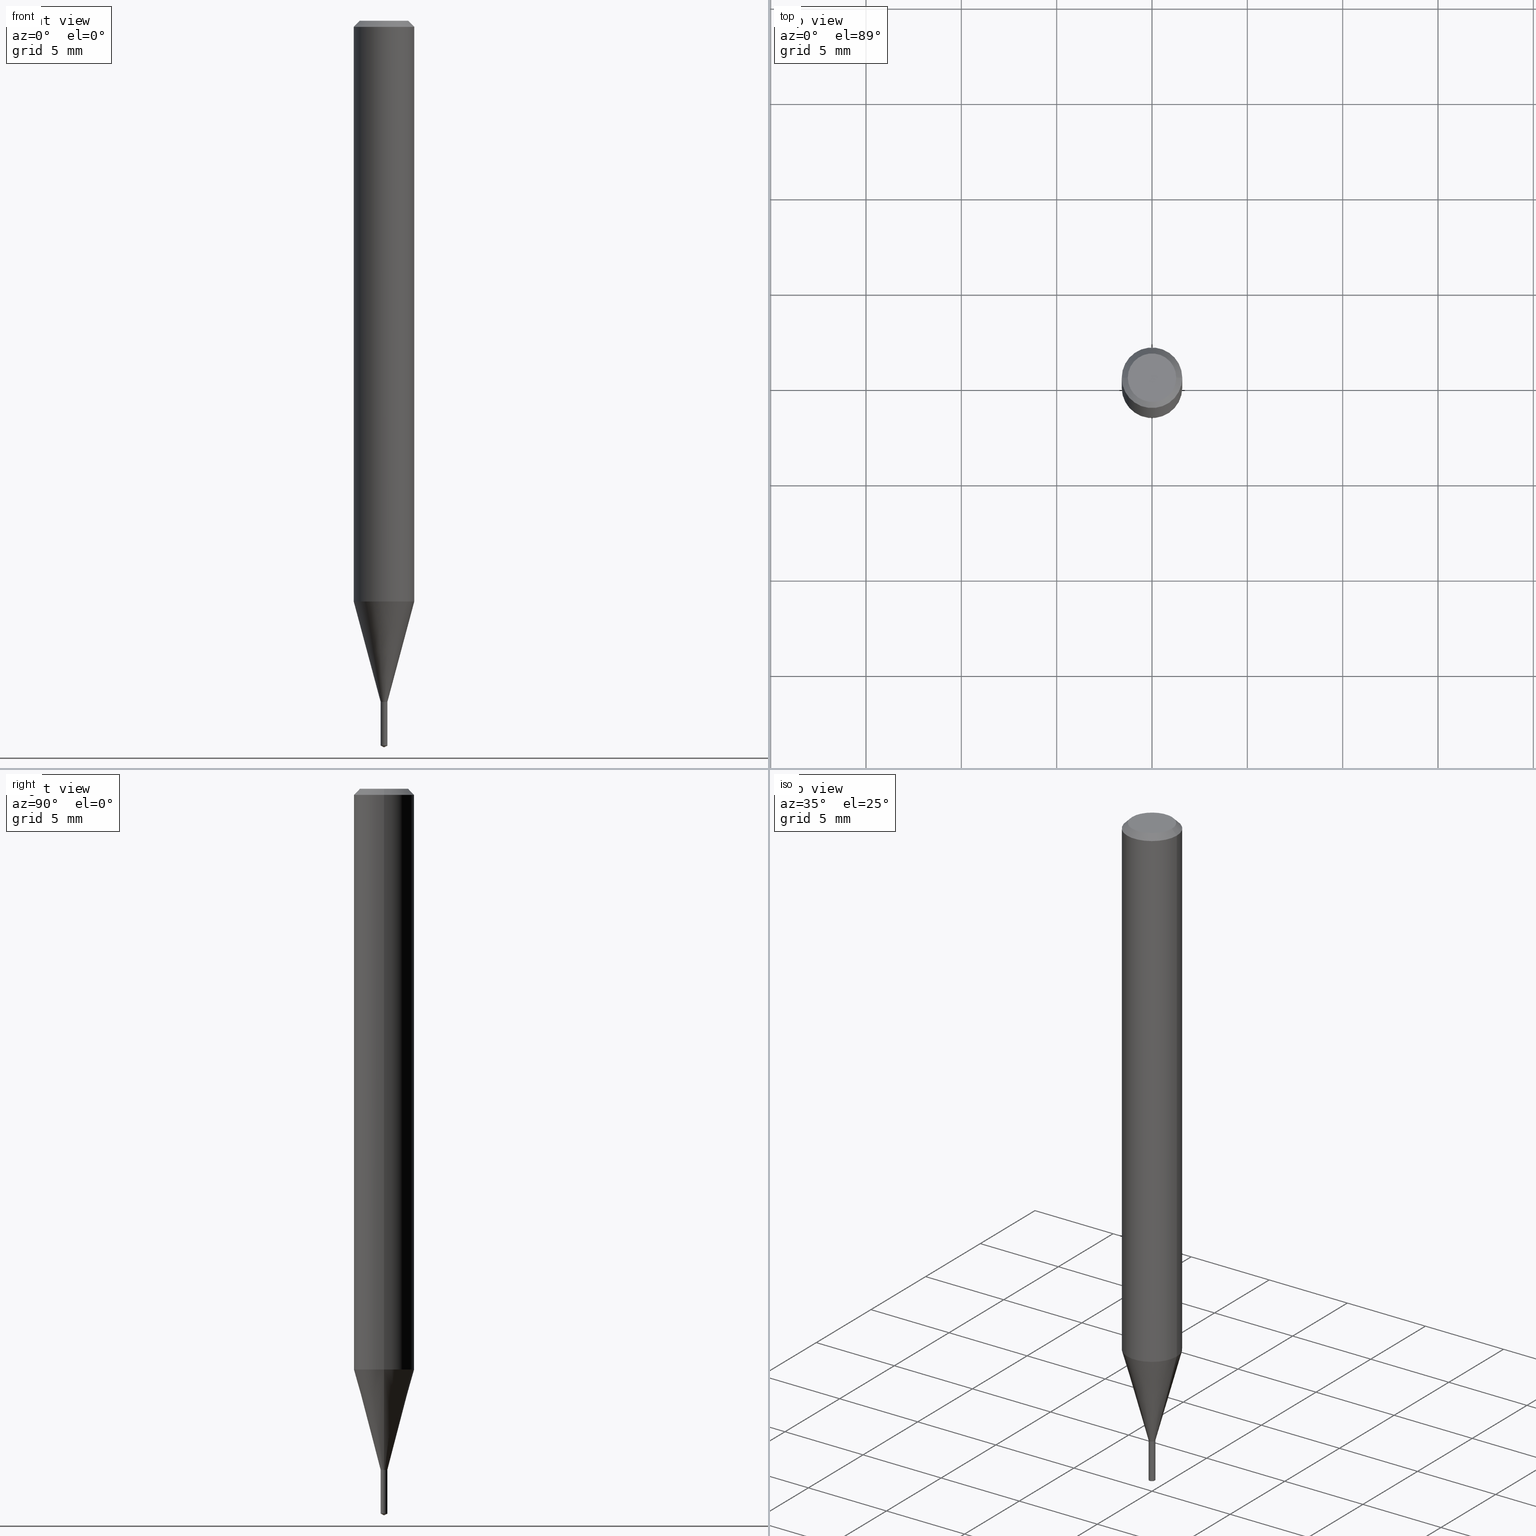
[diagram: canonical four-view strip — front | top / right | iso, engineering-drawing reading convention]
A machine part, canonical four-view strip (front | top / right | iso — engineering-drawing reading convention). The complete STEP part file that produces these views, byte-faithful:
ISO-10303-21;
HEADER;
FILE_DESCRIPTION (( 'STEP AP203' ),
    '1' );
FILE_NAME ('07118.STEP',
    '2024-04-23T19:33:33',
    ( '' ),
    ( '' ),
    'SwSTEP 2.0',
    'SolidWorks 2023',
    '' );
FILE_SCHEMA (( 'CONFIG_CONTROL_DESIGN' ));
ENDSEC;

DATA;
#1 = EDGE_LOOP ( 'NONE', ( #106, #3, #382, #408 ) ) ;
#2 = CYLINDRICAL_SURFACE ( 'NONE', #39, 0.06250000000000006939 ) ;
#3 = ORIENTED_EDGE ( 'NONE', *, *, #194, .T. ) ;
#4 = DIRECTION ( 'NONE',  ( -6.982962677686265922E-15, -1.000000000000000000, 0.000000000000000000 ) ) ;
#5 = EDGE_LOOP ( 'NONE', ( #230, #459, #77, #347 ) ) ;
#6 = CC_DESIGN_DATE_AND_TIME_ASSIGNMENT ( #275, #421, ( #169 ) ) ;
#7 = CARTESIAN_POINT ( 'NONE',  ( 0.06250000000000013878, -4.623063370858769770E-15, -1.199097975099176372 ) ) ;
#8 = VERTEX_POINT ( 'NONE', #294 ) ;
#9 = EDGE_CURVE ( 'NONE', #33, #416, #337, .T. ) ;
#10 = AXIS2_PLACEMENT_3D ( 'NONE', #247, #170, #292 ) ;
#11 = DIRECTION ( 'NONE',  ( -2.445468806185136597E-29, 3.491481338843145583E-15, 1.000000000000000000 ) ) ;
#12 = EDGE_CURVE ( 'NONE', #205, #72, #175, .T. ) ;
#13 = DIRECTION ( 'NONE',  ( -2.441004968667903807E-29, 3.497873808233676026E-15, 1.000000000000000000 ) ) ;
#14 = ADVANCED_FACE ( 'NONE', ( #217 ), #371, .F. ) ;
#15 = CARTESIAN_POINT ( 'NONE',  ( 0.006899999999999999883, -4.959300093692804553E-15, -1.406600000000000295 ) ) ;
#16 = DIRECTION ( 'NONE',  ( -2.445468806185136597E-29, 3.491481338843145583E-15, 1.000000000000000000 ) ) ;
#17 = DATE_AND_TIME ( #174, #150 ) ;
#18 = CC_DESIGN_PERSON_AND_ORGANIZATION_ASSIGNMENT ( #442, #397, ( #372 ) ) ;
#19 = FACE_OUTER_BOUND ( 'NONE', #251, .T. ) ;
#20 = CLOSED_SHELL ( 'NONE', ( #417, #88, #348, #65, #289 ) ) ;
#21 = CARTESIAN_POINT ( 'NONE',  ( -0.06250000000000000000, 3.927916506198520587E-16, -0.01250000000000008570 ) ) ;
#22 = DIRECTION ( 'NONE',  ( 1.000000000000000000, -6.982962677686270655E-15, 0.000000000000000000 ) ) ;
#23 = EDGE_CURVE ( 'NONE', #465, #205, #322, .T. ) ;
#24 = CYLINDRICAL_SURFACE ( 'NONE', #450, 0.006899999999999999883 ) ;
#25 = LINE ( 'NONE', #263, #259 ) ;
#26 = CARTESIAN_POINT ( 'NONE',  ( -9.243535897573469327E-28, 1.324729069394167476E-13, 37.87007874015748143 ) ) ;
#27 = DIRECTION ( 'NONE',  ( 1.000000000000000000, -6.982962677686303787E-15, 0.000000000000000000 ) ) ;
#28 = CARTESIAN_POINT ( 'NONE',  ( 0.006899999999999999883, -4.498075408831625167E-15, -1.274500000000000188 ) ) ;
#29 = AXIS2_PLACEMENT_3D ( 'NONE', #26, #267, #379 ) ;
#30 = EDGE_LOOP ( 'NONE', ( #126, #311, #265, #196 ) ) ;
#31 = CARTESIAN_POINT ( 'NONE',  ( -0.006399999999999998572, -4.406163971936365457E-15, -1.275000000000000133 ) ) ;
#32 = DIRECTION ( 'NONE',  ( -2.445468806185136597E-29, 3.491481338843145583E-15, 1.000000000000000000 ) ) ;
#33 = VERTEX_POINT ( 'NONE', #15 ) ;
#34 = CIRCLE ( 'NONE', #444, 0.006399999999999998572 ) ;
#35 = ORIENTED_EDGE ( 'NONE', *, *, #330, .F. ) ;
#36 = DIRECTION ( 'NONE',  ( 1.000000000000000000, -6.982962677686266711E-15, 4.876176775795935793E-29 ) ) ;
#37 = ORIENTED_EDGE ( 'NONE', *, *, #374, .F. ) ;
#38 = AXIS2_PLACEMENT_3D ( 'NONE', #142, #343, #441 ) ;
#39 = AXIS2_PLACEMENT_3D ( 'NONE', #153, #233, #36 ) ;
#40 = APPROVAL_STATUS ( 'not_yet_approved' ) ;
#41 = ORIENTED_EDGE ( 'NONE', *, *, #225, .F. ) ;
#42 = CARTESIAN_POINT ( 'NONE',  ( 3.056836007731441853E-31, -4.364351673553962300E-17, -0.01250000000000008570 ) ) ;
#43 = ORIENTED_EDGE ( 'NONE', *, *, #216, .F. ) ;
#44 = DIRECTION ( 'NONE',  ( -2.445468806185136597E-29, 3.491481338843145583E-15, 1.000000000000000000 ) ) ;
#45 = VERTEX_POINT ( 'NONE', #368 ) ;
#46 = AXIS2_PLACEMENT_3D ( 'NONE', #49, #400, #124 ) ;
#47 = DIRECTION ( 'NONE',  ( -2.445468806185136597E-29, 3.491481338843145583E-15, 1.000000000000000000 ) ) ;
#48 = DIRECTION ( 'NONE',  ( -2.445468806185136597E-29, 3.491481338843145583E-15, 1.000000000000000000 ) ) ;
#49 = CARTESIAN_POINT ( 'NONE',  ( 3.659344856593986449E-29, -5.227405825003717347E-15, -1.496782477158730584 ) ) ;
#50 = CARTESIAN_POINT ( 'NONE',  ( -4.818244247600405796E-17, -0.006900000000004452051, -1.275000000000000133 ) ) ;
#51 = CARTESIAN_POINT ( 'NONE',  ( -0.006899999999999999883, -4.631477860018732749E-15, -1.274500000000000188 ) ) ;
#52 = DATE_TIME_ROLE ( 'classification_date' ) ;
#53 = DIRECTION ( 'NONE',  ( 1.000000000000000000, -6.982962677686266711E-15, 0.000000000000000000 ) ) ;
#54 = AXIS2_PLACEMENT_3D ( 'NONE', #250, #44, #218 ) ;
#55 = DIRECTION ( 'NONE',  ( 1.000000000000000000, -6.982962677686303787E-15, 0.000000000000000000 ) ) ;
#56 = COORDINATED_UNIVERSAL_TIME_OFFSET ( 5, 0, .BEHIND. ) ;
#57 = APPROVAL_PERSON_ORGANIZATION ( #117, #63, #383 ) ;
#58 = CARTESIAN_POINT ( 'NONE',  ( 3.661507453001856271E-29, -5.246810712350514039E-15, -1.500000000000000222 ) ) ;
#59 = CARTESIAN_POINT ( 'NONE',  ( 3.117972727886049049E-29, -4.451638707025011594E-15, -1.275000000000000133 ) ) ;
#60 = DIRECTION ( 'NONE',  ( -1.000000000000000000, 6.982962677686265922E-15, -4.876176775795935793E-29 ) ) ;
#61 = CONICAL_SURFACE ( 'NONE', #102, 0.006399999999999998572, 0.7853981633975507526 ) ;
#62 = ORIENTED_EDGE ( 'NONE', *, *, #349, .T. ) ;
#63 = APPROVAL ( #82, 'UNSPECIFIED' ) ;
#64 = DIRECTION ( 'NONE',  ( 2.438088387897960049E-29, -3.491481338843145188E-15, -1.000000000000000000 ) ) ;
#65 = ADVANCED_FACE ( 'NONE', ( #19 ), #172, .T. ) ;
#66 = EDGE_CURVE ( 'NONE', #118, #8, #177, .T. ) ;
#67 = ORIENTED_EDGE ( 'NONE', *, *, #345, .T. ) ;
#68 = CYLINDRICAL_SURFACE ( 'NONE', #471, 0.006899999999999999883 ) ;
#69 = EDGE_CURVE ( 'NONE', #45, #205, #166, .T. ) ;
#70 = CIRCLE ( 'NONE', #46, 0.006900000000000001618 ) ;
#71 = PERSON_AND_ORGANIZATION_ROLE ( 'creator' ) ;
#72 = VERTEX_POINT ( 'NONE', #329 ) ;
#73 = UNCERTAINTY_MEASURE_WITH_UNIT (LENGTH_MEASURE( 1.000000000000000082E-05 ), #273, 'distance_accuracy_value', 'NONE');
#74 = EDGE_CURVE ( 'NONE', #243, #350, #227, .T. ) ;
#75 = DIRECTION ( 'NONE',  ( 0.000000000000000000, 0.000000000000000000, 1.000000000000000000 ) ) ;
#76 = PERSON ( 'UNSPECIFIED', 'UNSPECIFIED', 'UNSPECIFIED', ('UNSPECIFIED'), ('UNSPECIFIED'), ('UNSPECIFIED') ) ;
#77 = ORIENTED_EDGE ( 'NONE', *, *, #74, .F. ) ;
#78 = PERSON_AND_ORGANIZATION ( #76, #211 ) ;
#79 = ORIENTED_EDGE ( 'NONE', *, *, #374, .T. ) ;
#80 = AXIS2_PLACEMENT_3D ( 'NONE', #255, #283, #214 ) ;
#81 = APPROVAL_PERSON_ORGANIZATION ( #128, #97, #433 ) ;
#82 = APPROVAL_STATUS ( 'not_yet_approved' ) ;
#83 = EDGE_CURVE ( 'NONE', #33, #388, #25, .T. ) ;
#84 = ORIENTED_EDGE ( 'NONE', *, *, #23, .T. ) ;
#85 = LINE ( 'NONE', #327, #484 ) ;
#86 = DIRECTION ( 'NONE',  ( -2.441004968667903807E-29, 3.497873808233676026E-15, 1.000000000000000000 ) ) ;
#87 = EDGE_LOOP ( 'NONE', ( #384, #419, #352, #154 ) ) ;
#88 = ADVANCED_FACE ( 'NONE', ( #96 ), #112, .T. ) ;
#89 = DIRECTION ( 'NONE',  ( -2.445468806185136597E-29, 3.491481338843145583E-15, 1.000000000000000000 ) ) ;
#90 = CARTESIAN_POINT ( 'NONE',  ( -0.006899999999999999883, 4.902744876744691200E-17, -3.394065212275885310E-31 ) ) ;
#91 = VECTOR ( 'NONE', #443, 39.37007874015748143 ) ;
#92 = AXIS2_PLACEMENT_3D ( 'NONE', #244, #163, #463 ) ;
#93 = DIRECTION ( 'NONE',  ( 1.000000000000000000, -6.982962677686234367E-15, 0.000000000000000000 ) ) ;
#94 = EDGE_LOOP ( 'NONE', ( #342, #84, #272 ) ) ;
#95 = DIRECTION ( 'NONE',  ( -0.7071067811865451302, 2.468850131082231817E-15, -0.7071067811865499042 ) ) ;
#96 = FACE_OUTER_BOUND ( 'NONE', #313, .T. ) ;
#97 = APPROVAL ( #473, 'UNSPECIFIED' ) ;
#98 = FACE_OUTER_BOUND ( 'NONE', #279, .T. ) ;
#99 = COORDINATED_UNIVERSAL_TIME_OFFSET ( 5, 0, .BEHIND. ) ;
#100 = DIRECTION ( 'NONE',  ( 2.445468806185136597E-29, -3.491481338843145583E-15, -1.000000000000000000 ) ) ;
#101 = CIRCLE ( 'NONE', #148, 0.06250000000000000000 ) ;
#102 = AXIS2_PLACEMENT_3D ( 'NONE', #133, #47, #285 ) ;
#103 = LINE ( 'NONE', #31, #455 ) ;
#104 = DIRECTION ( 'NONE',  ( 1.000000000000000000, -6.982962677686270655E-15, 0.000000000000000000 ) ) ;
#105 = DIRECTION ( 'NONE',  ( 6.439704144417026409E-15, 0.9063077870366517130, 0.4226182617406956665 ) ) ;
#106 = ORIENTED_EDGE ( 'NONE', *, *, #349, .F. ) ;
#107 = CARTESIAN_POINT ( 'NONE',  ( 3.117972727886049049E-29, -4.451638707025011594E-15, -1.275000000000000133 ) ) ;
#108 = CIRCLE ( 'NONE', #249, 0.006899999999999999883 ) ;
#109 = LOCAL_TIME ( 15, 33, 33.00000000000000000, #332 ) ;
#110 = CARTESIAN_POINT ( 'NONE',  ( 3.672990052264815419E-29, -5.230509915404661862E-15, -1.500000000000000222 ) ) ;
#111 = CC_DESIGN_PERSON_AND_ORGANIZATION_ASSIGNMENT ( #239, #312, ( #252 ) ) ;
#112 = CONICAL_SURFACE ( 'NONE', #80, 84.42940631927412198, 1.134464013796314896 ) ;
#113 = CALENDAR_DATE ( 2024, 23, 4 ) ;
#114 = EDGE_LOOP ( 'NONE', ( #411, #276, #395, #461 ) ) ;
#115 = APPROVAL_DATE_TIME ( #198, #63 ) ;
#116 = ORIENTED_EDGE ( 'NONE', *, *, #335, .T. ) ;
#117 = PERSON_AND_ORGANIZATION ( #76, #211 ) ;
#118 = VERTEX_POINT ( 'NONE', #138 ) ;
#119 = ADVANCED_BREP_SHAPE_REPRESENTATION ( '07118', ( #398, #413, #271 ), #423 ) ;
#120 = DIRECTION ( 'NONE',  ( 0.7071067811866199593, -2.468850131083015945E-15, 0.7071067811864750752 ) ) ;
#121 = ORIENTED_EDGE ( 'NONE', *, *, #147, .T. ) ;
#122 = CLOSED_SHELL ( 'NONE', ( #305, #446, #468, #334, #357, #284, #365, #341, #191, #375, #14, #288 ) ) ;
#123 = CIRCLE ( 'NONE', #385, 0.04999999999999999584 ) ;
#124 = DIRECTION ( 'NONE',  ( -6.982962677686265133E-15, -1.000000000000000000, 0.000000000000000000 ) ) ;
#125 = LINE ( 'NONE', #208, #193 ) ;
#126 = ORIENTED_EDGE ( 'NONE', *, *, #74, .T. ) ;
#127 = DIRECTION ( 'NONE',  ( -2.445468806185136597E-29, 3.491481338843145583E-15, 1.000000000000000000 ) ) ;
#128 = PERSON_AND_ORGANIZATION ( #76, #211 ) ;
#129 = DIRECTION ( 'NONE',  ( -2.445468806185136877E-29, 3.491481338843145188E-15, 1.000000000000000000 ) ) ;
#130 = CARTESIAN_POINT ( 'NONE',  ( 0.000000000000000000, 0.000000000000000000, 0.000000000000000000 ) ) ;
#131 = DIRECTION ( 'NONE',  ( -2.445468806185136597E-29, 3.491481338843145583E-15, 1.000000000000000000 ) ) ;
#132 = VECTOR ( 'NONE', #396, 39.37007874015748854 ) ;
#133 = CARTESIAN_POINT ( 'NONE',  ( 3.117972727886049049E-29, -4.451638707025011594E-15, -1.275000000000000133 ) ) ;
#134 = CALENDAR_DATE ( 2024, 23, 4 ) ;
#135 = ORIENTED_EDGE ( 'NONE', *, *, #235, .T. ) ;
#136 = CARTESIAN_POINT ( 'NONE',  ( -0.006399999999999998572, -4.403514744762254256E-15, -1.275000000000000133 ) ) ;
#137 = PERSON_AND_ORGANIZATION_ROLE ( 'design_supplier' ) ;
#138 = CARTESIAN_POINT ( 'NONE',  ( 0.04999999999999999584, -4.077247707424184705E-16, 3.380025165673154903E-19 ) ) ;
#139 = APPROVAL ( #40, 'UNSPECIFIED' ) ;
#140 = DIRECTION ( 'NONE',  ( -6.982962677686265922E-15, -1.000000000000000000, 0.000000000000000000 ) ) ;
#141 = VERTEX_POINT ( 'NONE', #429 ) ;
#142 = CARTESIAN_POINT ( 'NONE',  ( 3.439796422780014085E-29, -4.911117651216769477E-15, -1.406600000000000295 ) ) ;
#143 = SECURITY_CLASSIFICATION ( '', '', #257 ) ;
#144 = CARTESIAN_POINT ( 'NONE',  ( -4.818244247599863454E-17, -0.006900000000005228340, -1.496782477158730584 ) ) ;
#145 = ORIENTED_EDGE ( 'NONE', *, *, #330, .T. ) ;
#146 = CARTESIAN_POINT ( 'NONE',  ( -0.006899999999999999883, -4.631477860018732749E-15, -1.406600000000000295 ) ) ;
#147 = EDGE_CURVE ( 'NONE', #350, #243, #238, .T. ) ;
#148 = AXIS2_PLACEMENT_3D ( 'NONE', #291, #366, #53 ) ;
#149 = AXIS2_PLACEMENT_3D ( 'NONE', #107, #86, #4 ) ;
#150 = LOCAL_TIME ( 15, 33, 33.00000000000000000, #56 ) ;
#151 = DIMENSIONAL_EXPONENTS ( 1.000000000000000000, 0.000000000000000000, 0.000000000000000000, 0.000000000000000000, 0.000000000000000000, 0.000000000000000000, 0.000000000000000000 ) ;
#152 = EDGE_CURVE ( 'NONE', #8, #318, #101, .T. ) ;
#153 = CARTESIAN_POINT ( 'NONE',  ( 0.000000000000000000, 0.000000000000000000, 0.000000000000000000 ) ) ;
#154 = ORIENTED_EDGE ( 'NONE', *, *, #12, .F. ) ;
#155 = FACE_OUTER_BOUND ( 'NONE', #30, .T. ) ;
#156 = AXIS2_PLACEMENT_3D ( 'NONE', #130, #436, #215 ) ;
#157 = CC_DESIGN_SECURITY_CLASSIFICATION ( #143, ( #372 ) ) ;
#158 = ORIENTED_EDGE ( 'NONE', *, *, #66, .T. ) ;
#159 = FACE_OUTER_BOUND ( 'NONE', #454, .T. ) ;
#160 = ORIENTED_EDGE ( 'NONE', *, *, #69, .T. ) ;
#161 = DIRECTION ( 'NONE',  ( -1.000000000000000000, 6.982962677686266711E-15, 0.000000000000000000 ) ) ;
#162 = ORIENTED_EDGE ( 'NONE', *, *, #171, .T. ) ;
#163 = DIRECTION ( 'NONE',  ( -2.445468806185136597E-29, 3.491481338843145583E-15, 1.000000000000000000 ) ) ;
#164 = LINE ( 'NONE', #242, #261 ) ;
#165 = ORIENTED_EDGE ( 'NONE', *, *, #203, .T. ) ;
#166 = CIRCLE ( 'NONE', #449, 0.006900000000000001618 ) ;
#167 = VECTOR ( 'NONE', #278, 39.37007874015748143 ) ;
#168 = LOCAL_TIME ( 15, 33, 33.00000000000000000, #307 ) ;
#169 = PRODUCT_DEFINITION ( 'UNKNOWN', '', #372, #231 ) ;
#170 = DIRECTION ( 'NONE',  ( -2.445468806185136597E-29, 3.491481338843145583E-15, 1.000000000000000000 ) ) ;
#171 = EDGE_CURVE ( 'NONE', #416, #308, #286, .T. ) ;
#172 = CYLINDRICAL_SURFACE ( 'NONE', #197, 0.006899999999999999883 ) ;
#173 = DIRECTION ( 'NONE',  ( -6.982962677686265922E-15, -1.000000000000000000, 0.000000000000000000 ) ) ;
#174 = CALENDAR_DATE ( 2024, 23, 4 ) ;
#175 = LINE ( 'NONE', #50, #91 ) ;
#176 = CARTESIAN_POINT ( 'NONE',  ( -0.06250000000000000000, -1.671046650269394440E-15, -0.01250000000000008570 ) ) ;
#177 = LINE ( 'NONE', #475, #430 ) ;
#178 = CIRCLE ( 'NONE', #149, 0.006899999999999999883 ) ;
#179 = FACE_OUTER_BOUND ( 'NONE', #301, .T. ) ;
#180 = CARTESIAN_POINT ( 'NONE',  ( 3.659344856593986449E-29, -5.227405825003717347E-15, -1.496782477158730584 ) ) ;
#181 = DIRECTION ( 'NONE',  ( -2.441004968667903807E-29, 3.497873808233676026E-15, 1.000000000000000000 ) ) ;
#182 = PERSON_AND_ORGANIZATION ( #76, #211 ) ;
#183 = DIRECTION ( 'NONE',  ( -6.982962677686265133E-15, -1.000000000000000000, 0.000000000000000000 ) ) ;
#184 = DIRECTION ( 'NONE',  ( -2.445468806185136597E-29, 3.491481338843145583E-15, 1.000000000000000000 ) ) ;
#185 = CONICAL_SURFACE ( 'NONE', #29, 84.42940631927412198, 1.134464013796314896 ) ;
#186 = AXIS2_PLACEMENT_3D ( 'NONE', #228, #331, #189 ) ;
#187 = FACE_OUTER_BOUND ( 'NONE', #94, .T. ) ;
#188 = APPLICATION_CONTEXT ( 'configuration controlled 3d designs of mechanical parts and assemblies' ) ;
#189 = DIRECTION ( 'NONE',  ( 1.000000000000000000, -6.982962677686266711E-15, 4.876176775795935793E-29 ) ) ;
#190 = ORIENTED_EDGE ( 'NONE', *, *, #476, .F. ) ;
#191 = ADVANCED_FACE ( 'NONE', ( #219 ), #192, .T. ) ;
#192 = CONICAL_SURFACE ( 'NONE', #232, 0.06250000000000000000, 0.7853981633974449483 ) ;
#193 = VECTOR ( 'NONE', #387, 39.37007874015748854 ) ;
#194 = EDGE_CURVE ( 'NONE', #234, #277, #487, .T. ) ;
#195 = MECHANICAL_CONTEXT ( 'NONE', #363, 'mechanical' ) ;
#196 = ORIENTED_EDGE ( 'NONE', *, *, #246, .F. ) ;
#197 = AXIS2_PLACEMENT_3D ( 'NONE', #373, #320, #376 ) ;
#198 = DATE_AND_TIME ( #113, #168 ) ;
#199 = CONICAL_SURFACE ( 'NONE', #38, 0.006899999999999999883, 0.2617993877991570684 ) ;
#200 = ORIENTED_EDGE ( 'NONE', *, *, #316, .F. ) ;
#201 = APPROVAL_ROLE ( '' ) ;
#202 = ORIENTED_EDGE ( 'NONE', *, *, #9, .F. ) ;
#203 = EDGE_CURVE ( 'NONE', #277, #234, #34, .T. ) ;
#204 = CARTESIAN_POINT ( 'NONE',  ( 3.661507453001856271E-29, -5.246810712350514039E-15, -1.500000000000000222 ) ) ;
#205 = VERTEX_POINT ( 'NONE', #144 ) ;
#206 = EDGE_CURVE ( 'NONE', #45, #378, #426, .T. ) ;
#207 = DIRECTION ( 'NONE',  ( -2.445468806185136877E-29, 3.491481338843145188E-15, 1.000000000000000000 ) ) ;
#208 = CARTESIAN_POINT ( 'NONE',  ( -0.006899999999999999883, -4.862090202449323231E-15, -1.406600000000000295 ) ) ;
#209 = ORIENTED_EDGE ( 'NONE', *, *, #213, .F. ) ;
#210 = AXIS2_PLACEMENT_3D ( 'NONE', #477, #89, #290 ) ;
#211 = ORGANIZATION ( 'UNSPECIFIED', 'UNSPECIFIED', '' ) ;
#212 = CARTESIAN_POINT ( 'NONE',  ( 3.116749993482957368E-29, -4.449892966355590090E-15, -1.274500000000000188 ) ) ;
#213 = EDGE_CURVE ( 'NONE', #350, #318, #367, .T. ) ;
#214 = DIRECTION ( 'NONE',  ( -6.982962677686267499E-15, -1.000000000000000000, 3.520397390770462942E-15 ) ) ;
#215 = DIRECTION ( 'NONE',  ( 1.000000000000000000, -6.982962677686267499E-15, 4.876176775795936353E-29 ) ) ;
#216 = EDGE_CURVE ( 'NONE', #416, #33, #317, .T. ) ;
#217 = FACE_OUTER_BOUND ( 'NONE', #241, .T. ) ;
#218 = DIRECTION ( 'NONE',  ( 1.000000000000000000, -6.982962677686265922E-15, 4.876194921942043128E-29 ) ) ;
#219 = FACE_OUTER_BOUND ( 'NONE', #114, .T. ) ;
#220 = VECTOR ( 'NONE', #248, 39.37007874015748143 ) ;
#221 = CONICAL_SURFACE ( 'NONE', #403, 0.06250000000000000000, 0.7853981633974449483 ) ;
#222 = CARTESIAN_POINT ( 'NONE',  ( 0.006899999999999999883, -4.959300093692804553E-15, -1.406600000000000295 ) ) ;
#223 = SHAPE_DEFINITION_REPRESENTATION ( #437, #119 ) ;
#224 = DIRECTION ( 'NONE',  ( -6.328713451373370167E-15, -0.9063077870366487154, 0.4226182617407018838 ) ) ;
#225 = EDGE_CURVE ( 'NONE', #205, #45, #70, .T. ) ;
#226 = DIRECTION ( 'NONE',  ( 1.000000000000000000, -6.982962677686265922E-15, 4.876176775795935793E-29 ) ) ;
#227 = CIRCLE ( 'NONE', #338, 0.06250000000000013878 ) ;
#228 = CARTESIAN_POINT ( 'NONE',  ( 0.000000000000000000, 0.000000000000000000, 0.000000000000000000 ) ) ;
#229 = CARTESIAN_POINT ( 'NONE',  ( 4.902744876748355705E-17, 0.006899999999995549450, -1.275000000000000133 ) ) ;
#230 = ORIENTED_EDGE ( 'NONE', *, *, #9, .T. ) ;
#231 = DESIGN_CONTEXT ( 'detailed design', #188, 'design' ) ;
#232 = AXIS2_PLACEMENT_3D ( 'NONE', #440, #100, #258 ) ;
#233 = DIRECTION ( 'NONE',  ( -2.445468806185136597E-29, 3.491481338843145583E-15, 1.000000000000000000 ) ) ;
#234 = VERTEX_POINT ( 'NONE', #136 ) ;
#235 = EDGE_CURVE ( 'NONE', #141, #118, #287, .T. ) ;
#236 = APPLICATION_PROTOCOL_DEFINITION ( 'international standard', 'config_control_design', 1994, #188 ) ;
#237 = ORIENTED_EDGE ( 'NONE', *, *, #194, .F. ) ;
#238 = CIRCLE ( 'NONE', #370, 0.06250000000000013878 ) ;
#239 = PERSON_AND_ORGANIZATION ( #76, #211 ) ;
#240 = AXIS2_PLACEMENT_3D ( 'NONE', #281, #16, #55 ) ;
#241 = EDGE_LOOP ( 'NONE', ( #309, #237 ) ) ;
#242 = CARTESIAN_POINT ( 'NONE',  ( 0.006399999999999998572, -4.496329668162203663E-15, -1.275000000000000133 ) ) ;
#243 = VERTEX_POINT ( 'NONE', #7 ) ;
#244 = CARTESIAN_POINT ( 'NONE',  ( 3.056836007731441853E-31, -4.364351673553962300E-17, -0.01250000000000008570 ) ) ;
#245 = EDGE_LOOP ( 'NONE', ( #165, #62, #35, #481 ) ) ;
#246 = EDGE_CURVE ( 'NONE', #243, #8, #85, .T. ) ;
#247 = CARTESIAN_POINT ( 'NONE',  ( 3.439796422780014085E-29, -4.911117651216769477E-15, -1.406600000000000295 ) ) ;
#248 = DIRECTION ( 'NONE',  ( -2.445468806185136877E-29, 3.491481338843145188E-15, 1.000000000000000000 ) ) ;
#249 = AXIS2_PLACEMENT_3D ( 'NONE', #212, #11, #323 ) ;
#250 = CARTESIAN_POINT ( 'NONE',  ( -8.265746106709734507E-48, 1.180129479067563789E-33, 3.380025165646692144E-19 ) ) ;
#251 = EDGE_LOOP ( 'NONE', ( #427, #160, #451, #274 ) ) ;
#252 = PRODUCT ( '07118', '07118', '', ( #195 ) ) ;
#253 = PRODUCT_RELATED_PRODUCT_CATEGORY ( 'detail', '', ( #252 ) ) ;
#254 = DIRECTION ( 'NONE',  ( 2.441004968667903807E-29, -3.497873808233676026E-15, -1.000000000000000000 ) ) ;
#255 = CARTESIAN_POINT ( 'NONE',  ( -9.243535897573469327E-28, 1.324729069394167476E-13, 37.87007874015748143 ) ) ;
#256 = LINE ( 'NONE', #222, #132 ) ;
#257 = SECURITY_CLASSIFICATION_LEVEL ( 'unclassified' ) ;
#258 = DIRECTION ( 'NONE',  ( -1.000000000000000000, 6.982962677686266711E-15, 0.000000000000000000 ) ) ;
#259 = VECTOR ( 'NONE', #129, 39.37007874015748143 ) ;
#260 = VECTOR ( 'NONE', #428, 39.37007874015748143 ) ;
#261 = VECTOR ( 'NONE', #120, 39.37007874015748143 ) ;
#262 = FACE_OUTER_BOUND ( 'NONE', #297, .T. ) ;
#263 = CARTESIAN_POINT ( 'NONE',  ( 0.006899999999999999883, -4.818244247603524262E-17, 3.364561975299196072E-31 ) ) ;
#264 = CARTESIAN_POINT ( 'NONE',  ( -0.06250000000000013878, -3.742538993653314695E-15, -1.199097975099176372 ) ) ;
#265 = ORIENTED_EDGE ( 'NONE', *, *, #152, .F. ) ;
#266 = CIRCLE ( 'NONE', #210, 0.006899999999999999883 ) ;
#267 = DIRECTION ( 'NONE',  ( -2.441004968667903807E-29, 3.497873808233676026E-15, 1.000000000000000000 ) ) ;
#268 = DIRECTION ( 'NONE',  ( -0.7071067811866199593, 7.493145998870616062E-15, 0.7071067811864750752 ) ) ;
#269 = VECTOR ( 'NONE', #224, 39.37007874015748854 ) ;
#270 =( NAMED_UNIT ( * ) SI_UNIT ( $, .STERADIAN. ) SOLID_ANGLE_UNIT ( ) );
#271 = AXIS2_PLACEMENT_3D ( 'NONE', #464, #75, #424 ) ;
#272 = ORIENTED_EDGE ( 'NONE', *, *, #69, .F. ) ;
#273 =( CONVERSION_BASED_UNIT ( 'INCH', #351 ) LENGTH_UNIT ( ) NAMED_UNIT ( #151 ) );
#274 = ORIENTED_EDGE ( 'NONE', *, *, #435, .F. ) ;
#275 = DATE_AND_TIME ( #460, #474 ) ;
#276 = ORIENTED_EDGE ( 'NONE', *, *, #235, .F. ) ;
#277 = VERTEX_POINT ( 'NONE', #472 ) ;
#278 = DIRECTION ( 'NONE',  ( -2.445468806185136877E-29, 3.491481338843145188E-15, 1.000000000000000000 ) ) ;
#279 = EDGE_LOOP ( 'NONE', ( #116, #488 ) ) ;
#280 = EDGE_CURVE ( 'NONE', #141, #318, #394, .T. ) ;
#281 = CARTESIAN_POINT ( 'NONE',  ( 3.117972727886049049E-29, -4.451638707025011594E-15, -1.275000000000000133 ) ) ;
#282 = DATE_AND_TIME ( #134, #109 ) ;
#283 = DIRECTION ( 'NONE',  ( -2.441004968667903807E-29, 3.497873808233676026E-15, 1.000000000000000000 ) ) ;
#284 = ADVANCED_FACE ( 'NONE', ( #179 ), #319, .F. ) ;
#285 = DIRECTION ( 'NONE',  ( 1.000000000000000000, -6.982962677686303787E-15, 0.000000000000000000 ) ) ;
#286 = LINE ( 'NONE', #90, #220 ) ;
#287 = CIRCLE ( 'NONE', #54, 0.04999999999999999584 ) ;
#288 = ADVANCED_FACE ( 'NONE', ( #439 ), #61, .T. ) ;
#289 = ADVANCED_FACE ( 'NONE', ( #98 ), #315, .F. ) ;
#290 = DIRECTION ( 'NONE',  ( 1.000000000000000000, -6.982962677686234367E-15, 0.000000000000000000 ) ) ;
#291 = CARTESIAN_POINT ( 'NONE',  ( 3.056836007731441853E-31, -4.364351673553962300E-17, -0.01250000000000008570 ) ) ;
#292 = DIRECTION ( 'NONE',  ( 1.000000000000000000, -6.982962677686234367E-15, 0.000000000000000000 ) ) ;
#293 = EDGE_CURVE ( 'NONE', #308, #388, #266, .T. ) ;
#294 = CARTESIAN_POINT ( 'NONE',  ( 0.06250000000000000000, -4.800786840909313294E-16, -0.01250000000000008570 ) ) ;
#295 = FACE_OUTER_BOUND ( 'NONE', #422, .T. ) ;
#296 = PERSON_AND_ORGANIZATION ( #76, #211 ) ;
#297 = EDGE_LOOP ( 'NONE', ( #135, #79 ) ) ;
#298 = CIRCLE ( 'NONE', #339, 0.006899999999999999883 ) ;
#299 = CYLINDRICAL_SURFACE ( 'NONE', #186, 0.06250000000000006939 ) ;
#300 = DIRECTION ( 'NONE',  ( 1.000000000000000000, -6.982962677686303787E-15, 0.000000000000000000 ) ) ;
#301 = EDGE_LOOP ( 'NONE', ( #390, #202, #362, #145 ) ) ;
#302 = FACE_OUTER_BOUND ( 'NONE', #87, .T. ) ;
#303 = AXIS2_PLACEMENT_3D ( 'NONE', #405, #48, #434 ) ;
#304 = AXIS2_PLACEMENT_3D ( 'NONE', #402, #184, #300 ) ;
#305 = ADVANCED_FACE ( 'NONE', ( #359 ), #431, .T. ) ;
#306 = EDGE_CURVE ( 'NONE', #33, #243, #256, .T. ) ;
#307 = COORDINATED_UNIVERSAL_TIME_OFFSET ( 5, 0, .BEHIND. ) ;
#308 = VERTEX_POINT ( 'NONE', #51 ) ;
#309 = ORIENTED_EDGE ( 'NONE', *, *, #203, .F. ) ;
#310 = APPLICATION_PROTOCOL_DEFINITION ( 'international standard', 'config_control_design', 1994, #363 ) ;
#311 = ORIENTED_EDGE ( 'NONE', *, *, #213, .T. ) ;
#312 = PERSON_AND_ORGANIZATION_ROLE ( 'design_owner' ) ;
#313 = EDGE_LOOP ( 'NONE', ( #479, #67, #41 ) ) ;
#314 = CC_DESIGN_PERSON_AND_ORGANIZATION_ASSIGNMENT ( #418, #71, ( #169 ) ) ;
#315 = PLANE ( 'NONE',  #414 ) ;
#316 = EDGE_CURVE ( 'NONE', #318, #8, #361, .T. ) ;
#317 = CIRCLE ( 'NONE', #10, 0.006899999999999999883 ) ;
#318 = VERTEX_POINT ( 'NONE', #176 ) ;
#319 = CYLINDRICAL_SURFACE ( 'NONE', #156, 0.006899999999999999883 ) ;
#320 = DIRECTION ( 'NONE',  ( -2.441004968667903807E-29, 3.497873808233676026E-15, 1.000000000000000000 ) ) ;
#321 = FACE_OUTER_BOUND ( 'NONE', #485, .T. ) ;
#322 = LINE ( 'NONE', #58, #269 ) ;
#323 = DIRECTION ( 'NONE',  ( 1.000000000000000000, -6.982962677686234367E-15, 0.000000000000000000 ) ) ;
#324 = DIRECTION ( 'NONE',  ( -2.438088387897960049E-29, 3.491481338843145188E-15, 1.000000000000000000 ) ) ;
#325 = AXIS2_PLACEMENT_3D ( 'NONE', #412, #64, #60 ) ;
#326 = CC_DESIGN_APPROVAL ( #97, ( #143 ) ) ;
#327 = CARTESIAN_POINT ( 'NONE',  ( 0.06250000000000006939, -4.364351673553921624E-16, 3.047610484872463374E-30 ) ) ;
#328 = CALENDAR_DATE ( 2024, 23, 4 ) ;
#329 = CARTESIAN_POINT ( 'NONE',  ( -4.818244247600405796E-17, -0.006900000000004452051, -1.275000000000000133 ) ) ;
#330 = EDGE_CURVE ( 'NONE', #388, #308, #108, .T. ) ;
#331 = DIRECTION ( 'NONE',  ( -2.445468806185136597E-29, 3.491481338843145583E-15, 1.000000000000000000 ) ) ;
#332 = COORDINATED_UNIVERSAL_TIME_OFFSET ( 5, 0, .BEHIND. ) ;
#333 = CARTESIAN_POINT ( 'NONE',  ( 2.932356693664797895E-29, -4.186628203503377311E-15, -1.199097975099176372 ) ) ;
#334 = ADVANCED_FACE ( 'NONE', ( #389 ), #381, .T. ) ;
#335 = EDGE_CURVE ( 'NONE', #72, #378, #298, .T. ) ;
#336 = CARTESIAN_POINT ( 'NONE',  ( 3.117972727886049049E-29, -4.451638707025011594E-15, -1.275000000000000133 ) ) ;
#337 = CIRCLE ( 'NONE', #303, 0.006899999999999999883 ) ;
#338 = AXIS2_PLACEMENT_3D ( 'NONE', #333, #467, #22 ) ;
#339 = AXIS2_PLACEMENT_3D ( 'NONE', #364, #13, #173 ) ;
#340 = APPROVAL_PERSON_ORGANIZATION ( #78, #139, #201 ) ;
#341 = ADVANCED_FACE ( 'NONE', ( #321 ), #299, .T. ) ;
#342 = ORIENTED_EDGE ( 'NONE', *, *, #345, .F. ) ;
#343 = DIRECTION ( 'NONE',  ( -2.445468806185136597E-29, 3.491481338843145583E-15, 1.000000000000000000 ) ) ;
#344 = CC_DESIGN_DATE_AND_TIME_ASSIGNMENT ( #17, #52, ( #143 ) ) ;
#345 = EDGE_CURVE ( 'NONE', #465, #45, #380, .T. ) ;
#346 = DIRECTION ( 'NONE',  ( -2.445468806185136597E-29, 3.491481338843145583E-15, 1.000000000000000000 ) ) ;
#347 = ORIENTED_EDGE ( 'NONE', *, *, #306, .F. ) ;
#348 = ADVANCED_FACE ( 'NONE', ( #187 ), #185, .T. ) ;
#349 = EDGE_CURVE ( 'NONE', #234, #308, #103, .T. ) ;
#350 = VERTEX_POINT ( 'NONE', #264 ) ;
#351 = LENGTH_MEASURE_WITH_UNIT ( LENGTH_MEASURE( 0.02539999999999999897 ), #458 );
#352 = ORIENTED_EDGE ( 'NONE', *, *, #335, .F. ) ;
#353 = LOCAL_TIME ( 15, 33, 33.00000000000000000, #99 ) ;
#354 = COORDINATED_UNIVERSAL_TIME_OFFSET ( 5, 0, .BEHIND. ) ;
#355 = ORIENTED_EDGE ( 'NONE', *, *, #280, .F. ) ;
#356 = EDGE_LOOP ( 'NONE', ( #43, #162, #447, #425 ) ) ;
#357 = ADVANCED_FACE ( 'NONE', ( #406 ), #68, .F. ) ;
#358 = ORIENTED_EDGE ( 'NONE', *, *, #306, .T. ) ;
#359 = FACE_OUTER_BOUND ( 'NONE', #245, .T. ) ;
#360 = APPROVAL_DATE_TIME ( #478, #139 ) ;
#361 = CIRCLE ( 'NONE', #92, 0.06250000000000000000 ) ;
#362 = ORIENTED_EDGE ( 'NONE', *, *, #83, .T. ) ;
#363 = APPLICATION_CONTEXT ( 'configuration controlled 3d designs of mechanical parts and assemblies' ) ;
#364 = CARTESIAN_POINT ( 'NONE',  ( 3.117972727886049049E-29, -4.451638707025011594E-15, -1.275000000000000133 ) ) ;
#365 = ADVANCED_FACE ( 'NONE', ( #295 ), #199, .T. ) ;
#366 = DIRECTION ( 'NONE',  ( -2.445468806185136597E-29, 3.491481338843145583E-15, 1.000000000000000000 ) ) ;
#367 = LINE ( 'NONE', #369, #167 ) ;
#368 = CARTESIAN_POINT ( 'NONE',  ( 4.902744876748350158E-17, 0.006899999999994771427, -1.496782477158730584 ) ) ;
#369 = CARTESIAN_POINT ( 'NONE',  ( -0.06250000000000006939, 4.440892098500631092E-16, -3.074334431409319267E-30 ) ) ;
#370 = AXIS2_PLACEMENT_3D ( 'NONE', #399, #131, #104 ) ;
#371 = PLANE ( 'NONE',  #377 ) ;
#372 = PRODUCT_DEFINITION_FORMATION_WITH_SPECIFIED_SOURCE ( 'ANY', '', #252, .NOT_KNOWN. ) ;
#373 = CARTESIAN_POINT ( 'NONE',  ( 3.117972727886049049E-29, -4.451638707025011594E-15, -1.275000000000000133 ) ) ;
#374 = EDGE_CURVE ( 'NONE', #118, #141, #123, .T. ) ;
#375 = ADVANCED_FACE ( 'NONE', ( #262 ), #445, .F. ) ;
#376 = DIRECTION ( 'NONE',  ( -6.982962677686265922E-15, -1.000000000000000000, 0.000000000000000000 ) ) ;
#377 = AXIS2_PLACEMENT_3D ( 'NONE', #59, #324, #226 ) ;
#378 = VERTEX_POINT ( 'NONE', #229 ) ;
#379 = DIRECTION ( 'NONE',  ( -6.982962677686267499E-15, -1.000000000000000000, 3.520397390770462942E-15 ) ) ;
#380 = LINE ( 'NONE', #110, #391 ) ;
#381 = CONICAL_SURFACE ( 'NONE', #407, 0.006899999999999999883, 0.2617993877991570684 ) ;
#382 = ORIENTED_EDGE ( 'NONE', *, *, #489, .T. ) ;
#383 = APPROVAL_ROLE ( '' ) ;
#384 = ORIENTED_EDGE ( 'NONE', *, *, #225, .T. ) ;
#385 = AXIS2_PLACEMENT_3D ( 'NONE', #480, #346, #486 ) ;
#386 = ORIENTED_EDGE ( 'NONE', *, *, #216, .T. ) ;
#387 = DIRECTION ( 'NONE',  ( -0.2588190451025281225, 5.211531920934590485E-15, 0.9659258262890662028 ) ) ;
#388 = VERTEX_POINT ( 'NONE', #28 ) ;
#389 = FACE_OUTER_BOUND ( 'NONE', #5, .T. ) ;
#390 = ORIENTED_EDGE ( 'NONE', *, *, #171, .F. ) ;
#391 = VECTOR ( 'NONE', #105, 39.37007874015748143 ) ;
#392 = CARTESIAN_POINT ( 'NONE',  ( 3.117972727886049049E-29, -4.451638707025011594E-15, -1.275000000000000133 ) ) ;
#393 = ORIENTED_EDGE ( 'NONE', *, *, #246, .T. ) ;
#394 = LINE ( 'NONE', #21, #462 ) ;
#395 = ORIENTED_EDGE ( 'NONE', *, *, #280, .T. ) ;
#396 = DIRECTION ( 'NONE',  ( 0.2588190451025281225, 1.565188264969568128E-15, 0.9659258262890662028 ) ) ;
#397 = PERSON_AND_ORGANIZATION_ROLE ( 'creator' ) ;
#398 = MANIFOLD_SOLID_BREP ( 'Body-Move/Copy2[1]', #20 ) ;
#399 = CARTESIAN_POINT ( 'NONE',  ( 2.932356693664797895E-29, -4.186628203503377311E-15, -1.199097975099176372 ) ) ;
#400 = DIRECTION ( 'NONE',  ( -2.441004968667903807E-29, 3.497873808233676026E-15, 1.000000000000000000 ) ) ;
#401 = PERSON_AND_ORGANIZATION_ROLE ( 'classification_officer' ) ;
#402 = CARTESIAN_POINT ( 'NONE',  ( 3.117972727886049049E-29, -4.451638707025011594E-15, -1.275000000000000133 ) ) ;
#403 = AXIS2_PLACEMENT_3D ( 'NONE', #42, #415, #161 ) ;
#404 = APPROVAL_DATE_TIME ( #282, #97 ) ;
#405 = CARTESIAN_POINT ( 'NONE',  ( 3.439796422780014085E-29, -4.911117651216769477E-15, -1.406600000000000295 ) ) ;
#406 = FACE_OUTER_BOUND ( 'NONE', #356, .T. ) ;
#407 = AXIS2_PLACEMENT_3D ( 'NONE', #466, #127, #93 ) ;
#408 = ORIENTED_EDGE ( 'NONE', *, *, #293, .F. ) ;
#409 = CC_DESIGN_APPROVAL ( #63, ( #169 ) ) ;
#410 = DIRECTION ( 'NONE',  ( 1.000000000000000000, -6.982962677686267499E-15, 4.876176775795936353E-29 ) ) ;
#411 = ORIENTED_EDGE ( 'NONE', *, *, #66, .F. ) ;
#412 = CARTESIAN_POINT ( 'NONE',  ( -4.132873053354867254E-48, 5.900647395337818946E-34, 1.690012582823346072E-19 ) ) ;
#413 = MANIFOLD_SOLID_BREP ( 'Body-Move/Copy2[2]', #122 ) ;
#414 = AXIS2_PLACEMENT_3D ( 'NONE', #392, #254, #432 ) ;
#415 = DIRECTION ( 'NONE',  ( 2.445468806185136597E-29, -3.491481338843145583E-15, -1.000000000000000000 ) ) ;
#416 = VERTEX_POINT ( 'NONE', #146 ) ;
#417 = ADVANCED_FACE ( 'NONE', ( #302 ), #24, .T. ) ;
#418 = PERSON_AND_ORGANIZATION ( #76, #211 ) ;
#419 = ORIENTED_EDGE ( 'NONE', *, *, #206, .T. ) ;
#420 = CC_DESIGN_PERSON_AND_ORGANIZATION_ASSIGNMENT ( #296, #401, ( #143 ) ) ;
#421 = DATE_TIME_ROLE ( 'creation_date' ) ;
#422 = EDGE_LOOP ( 'NONE', ( #190, #386, #358, #490 ) ) ;
#423 =( GEOMETRIC_REPRESENTATION_CONTEXT ( 3 ) GLOBAL_UNCERTAINTY_ASSIGNED_CONTEXT ( ( #73 ) ) GLOBAL_UNIT_ASSIGNED_CONTEXT ( ( #273, #456, #270 ) ) REPRESENTATION_CONTEXT ( 'NONE', 'WORKASPACE' ) );
#424 = DIRECTION ( 'NONE',  ( 1.000000000000000000, 0.000000000000000000, 0.000000000000000000 ) ) ;
#425 = ORIENTED_EDGE ( 'NONE', *, *, #83, .F. ) ;
#426 = LINE ( 'NONE', #469, #260 ) ;
#427 = ORIENTED_EDGE ( 'NONE', *, *, #206, .F. ) ;
#428 = DIRECTION ( 'NONE',  ( -2.441004968667903807E-29, 3.497873808233676026E-15, 1.000000000000000000 ) ) ;
#429 = CARTESIAN_POINT ( 'NONE',  ( -0.04999999999999999584, 3.709698922520826725E-16, 3.380025165621512536E-19 ) ) ;
#430 = VECTOR ( 'NONE', #438, 39.37007874015748143 ) ;
#431 = CONICAL_SURFACE ( 'NONE', #240, 0.006399999999999998572, 0.7853981633975507526 ) ;
#432 = DIRECTION ( 'NONE',  ( 6.982962677686265922E-15, 1.000000000000000000, -3.497873808233676026E-15 ) ) ;
#433 = APPROVAL_ROLE ( '' ) ;
#434 = DIRECTION ( 'NONE',  ( 1.000000000000000000, -6.982962677686234367E-15, 0.000000000000000000 ) ) ;
#435 = EDGE_CURVE ( 'NONE', #378, #72, #178, .T. ) ;
#436 = DIRECTION ( 'NONE',  ( -2.445468806185136597E-29, 3.491481338843145583E-15, 1.000000000000000000 ) ) ;
#437 = PRODUCT_DEFINITION_SHAPE ( 'NONE', 'NONE',  #169 ) ;
#438 = DIRECTION ( 'NONE',  ( 0.7071067811865451302, -7.319954787623248157E-15, -0.7071067811865499042 ) ) ;
#439 = FACE_OUTER_BOUND ( 'NONE', #1, .T. ) ;
#440 = CARTESIAN_POINT ( 'NONE',  ( 3.056836007731441853E-31, -4.364351673553962300E-17, -0.01250000000000008570 ) ) ;
#441 = DIRECTION ( 'NONE',  ( 1.000000000000000000, -6.982962677686234367E-15, 0.000000000000000000 ) ) ;
#442 = PERSON_AND_ORGANIZATION ( #76, #211 ) ;
#443 = DIRECTION ( 'NONE',  ( -2.441004968667903807E-29, 3.497873808233676026E-15, 1.000000000000000000 ) ) ;
#444 = AXIS2_PLACEMENT_3D ( 'NONE', #336, #483, #27 ) ;
#445 = PLANE ( 'NONE',  #325 ) ;
#446 = ADVANCED_FACE ( 'NONE', ( #159 ), #221, .T. ) ;
#447 = ORIENTED_EDGE ( 'NONE', *, *, #293, .T. ) ;
#448 = CARTESIAN_POINT ( 'NONE',  ( 3.117972727886049049E-29, -4.451638707025011594E-15, -1.275000000000000133 ) ) ;
#449 = AXIS2_PLACEMENT_3D ( 'NONE', #180, #470, #183 ) ;
#450 = AXIS2_PLACEMENT_3D ( 'NONE', #448, #181, #140 ) ;
#451 = ORIENTED_EDGE ( 'NONE', *, *, #12, .T. ) ;
#452 = CC_DESIGN_APPROVAL ( #139, ( #372 ) ) ;
#453 = CC_DESIGN_PERSON_AND_ORGANIZATION_ASSIGNMENT ( #182, #137, ( #372 ) ) ;
#454 = EDGE_LOOP ( 'NONE', ( #37, #158, #457, #355 ) ) ;
#455 = VECTOR ( 'NONE', #268, 39.37007874015748143 ) ;
#456 =( NAMED_UNIT ( * ) PLANE_ANGLE_UNIT ( ) SI_UNIT ( $, .RADIAN. ) );
#457 = ORIENTED_EDGE ( 'NONE', *, *, #152, .T. ) ;
#458 =( LENGTH_UNIT ( ) NAMED_UNIT ( * ) SI_UNIT ( $, .METRE. ) );
#459 = ORIENTED_EDGE ( 'NONE', *, *, #476, .T. ) ;
#460 = CALENDAR_DATE ( 2024, 23, 4 ) ;
#461 = ORIENTED_EDGE ( 'NONE', *, *, #316, .T. ) ;
#462 = VECTOR ( 'NONE', #95, 39.37007874015748143 ) ;
#463 = DIRECTION ( 'NONE',  ( 1.000000000000000000, -6.982962677686266711E-15, 0.000000000000000000 ) ) ;
#464 = CARTESIAN_POINT ( 'NONE',  ( 0.000000000000000000, 0.000000000000000000, 0.000000000000000000 ) ) ;
#465 = VERTEX_POINT ( 'NONE', #204 ) ;
#466 = CARTESIAN_POINT ( 'NONE',  ( 3.439796422780014085E-29, -4.911117651216769477E-15, -1.406600000000000295 ) ) ;
#467 = DIRECTION ( 'NONE',  ( -2.445468806185136597E-29, 3.491481338843145583E-15, 1.000000000000000000 ) ) ;
#468 = ADVANCED_FACE ( 'NONE', ( #155 ), #2, .T. ) ;
#469 = CARTESIAN_POINT ( 'NONE',  ( 4.902744876747808433E-17, 0.006899999999995547716, -1.275000000000000133 ) ) ;
#470 = DIRECTION ( 'NONE',  ( -2.441004968667903807E-29, 3.497873808233676026E-15, 1.000000000000000000 ) ) ;
#471 = AXIS2_PLACEMENT_3D ( 'NONE', #482, #32, #410 ) ;
#472 = CARTESIAN_POINT ( 'NONE',  ( 0.006399999999999998572, -4.496329668162203663E-15, -1.275000000000000133 ) ) ;
#473 = APPROVAL_STATUS ( 'not_yet_approved' ) ;
#474 = LOCAL_TIME ( 15, 33, 33.00000000000000000, #354 ) ;
#475 = CARTESIAN_POINT ( 'NONE',  ( 0.06250000000000000000, -4.724246415962603826E-16, -0.01250000000000008570 ) ) ;
#476 = EDGE_CURVE ( 'NONE', #416, #350, #125, .T. ) ;
#477 = CARTESIAN_POINT ( 'NONE',  ( 3.116749993482957368E-29, -4.449892966355590090E-15, -1.274500000000000188 ) ) ;
#478 = DATE_AND_TIME ( #328, #353 ) ;
#479 = ORIENTED_EDGE ( 'NONE', *, *, #23, .F. ) ;
#480 = CARTESIAN_POINT ( 'NONE',  ( -8.265746106709734507E-48, 1.180129479067563789E-33, 3.380025165646692144E-19 ) ) ;
#481 = ORIENTED_EDGE ( 'NONE', *, *, #489, .F. ) ;
#482 = CARTESIAN_POINT ( 'NONE',  ( 0.000000000000000000, 0.000000000000000000, 0.000000000000000000 ) ) ;
#483 = DIRECTION ( 'NONE',  ( -2.445468806185136597E-29, 3.491481338843145583E-15, 1.000000000000000000 ) ) ;
#484 = VECTOR ( 'NONE', #207, 39.37007874015748143 ) ;
#485 = EDGE_LOOP ( 'NONE', ( #209, #121, #393, #200 ) ) ;
#486 = DIRECTION ( 'NONE',  ( 1.000000000000000000, -6.982962677686265922E-15, 4.876194921942043128E-29 ) ) ;
#487 = CIRCLE ( 'NONE', #304, 0.006399999999999998572 ) ;
#488 = ORIENTED_EDGE ( 'NONE', *, *, #435, .T. ) ;
#489 = EDGE_CURVE ( 'NONE', #277, #388, #164, .T. ) ;
#490 = ORIENTED_EDGE ( 'NONE', *, *, #147, .F. ) ;
ENDSEC;
END-ISO-10303-21;
